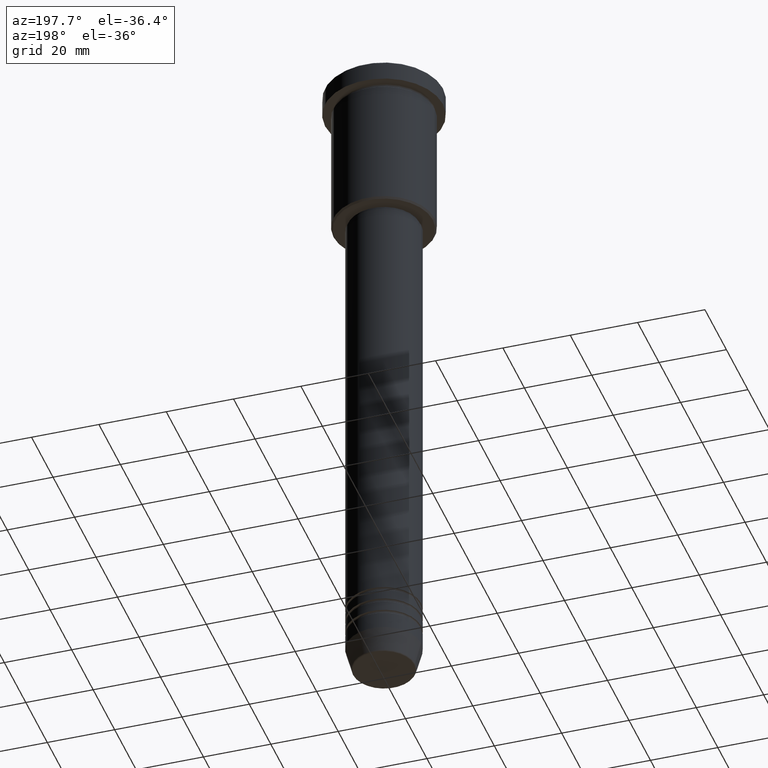
[diagram: clean part render]
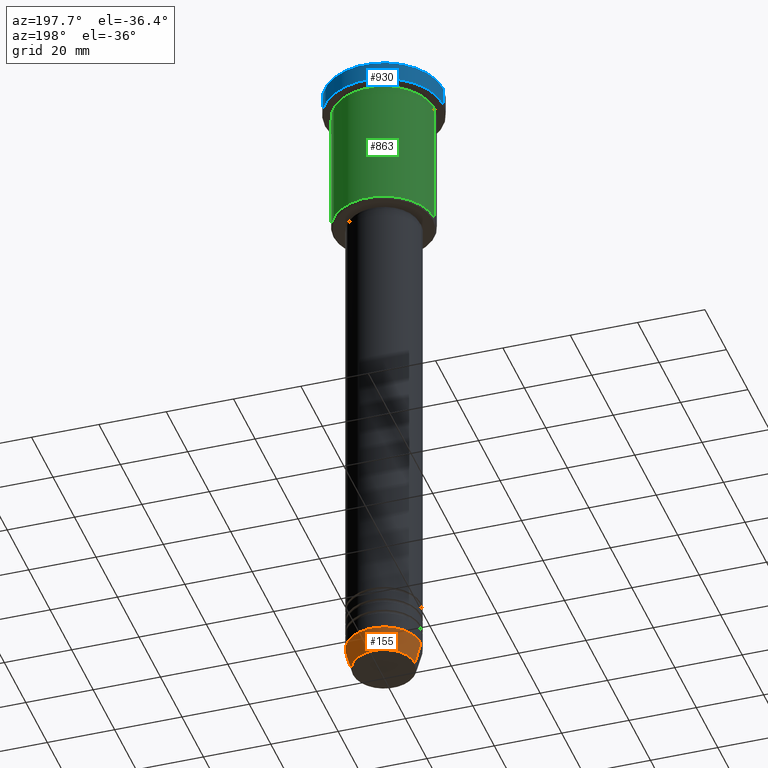
[diagram: same view with three faces highlighted in distinct colors, each labeled with its STEP entity id]
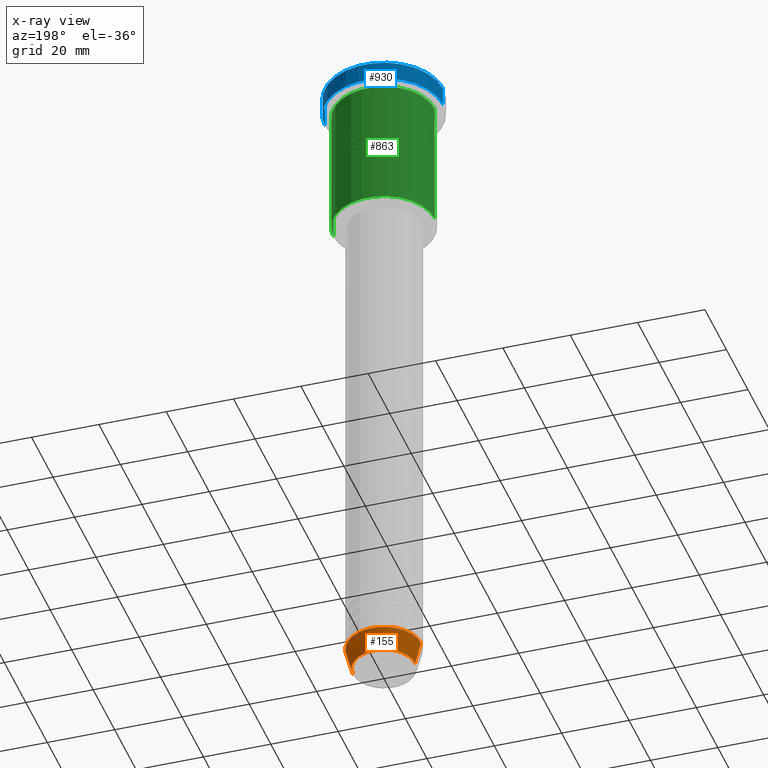
[diagram: x-ray of the same camera — body ghosted, the three highlighted faces saturated]
A machine part, auxiliary view with three faces highlighted in distinct colors.
The next image is the same camera in x-ray (body ghosted, the three faces saturated) — at least one of them is partly hidden behind the body in this view.
Their STEP definitions:

[orange] entity #155 — the highlighted conical surface has half-angle 15 deg.
#14 = ORIENTED_EDGE ( 'NONE', *, *, #70, .F. ) ;
#18 = DIRECTION ( 'NONE',  ( 0.2588190451025213501, 0.000000000000000000, 0.9659258262890680902 ) ) ;
#34 = AXIS2_PLACEMENT_3D ( 'NONE', #71, #628, #81 ) ;
#70 = EDGE_CURVE ( 'NONE', #952, #1005, #313, .T. ) ;
#71 = CARTESIAN_POINT ( 'NONE',  ( 0.000000000000000000, 0.000000000000000000, -194.0000000000000000 ) ) ;
#81 = DIRECTION ( 'NONE',  ( 1.000000000000000000, 0.000000000000000000, 0.000000000000000000 ) ) ;
#120 = CARTESIAN_POINT ( 'NONE',  ( -9.223655072137189492, 1.238341722557647202E-15, -200.6294095225512706 ) ) ;
#151 = DIRECTION ( 'NONE',  ( 1.000000000000000000, 0.000000000000000000, 0.000000000000000000 ) ) ;
#155 = ADVANCED_FACE ( 'NONE', ( #921 ), #1100, .T. ) ;
#160 = AXIS2_PLACEMENT_3D ( 'NONE', #976, #694, #151 ) ;
#167 = DIRECTION ( 'NONE',  ( -0.2588190451025213501, 3.169619151431772337E-17, 0.9659258262890680902 ) ) ;
#172 = LINE ( 'NONE', #1007, #1152 ) ;
#196 = CARTESIAN_POINT ( 'NONE',  ( -11.00000000000000000, 1.347111479062088405E-15, -194.0000000000000000 ) ) ;
#261 = ORIENTED_EDGE ( 'NONE', *, *, #949, .T. ) ;
#264 = EDGE_CURVE ( 'NONE', #269, #952, #385, .T. ) ;
#267 = CARTESIAN_POINT ( 'NONE',  ( 0.000000000000000000, 0.000000000000000000, -194.0000000000000000 ) ) ;
#269 = VERTEX_POINT ( 'NONE', #376 ) ;
#313 = CIRCLE ( 'NONE', #34, 11.00000000000000000 ) ;
#337 = VECTOR ( 'NONE', #18, 1000.000000000000000 ) ;
#359 = CARTESIAN_POINT ( 'NONE',  ( 11.00000000000000000, 0.000000000000000000, -194.0000000000000000 ) ) ;
#376 = CARTESIAN_POINT ( 'NONE',  ( 9.223655072137189492, 0.000000000000000000, -200.6294095225512706 ) ) ;
#385 = LINE ( 'NONE', #641, #337 ) ;
#542 = VERTEX_POINT ( 'NONE', #120 ) ;
#592 = EDGE_CURVE ( 'NONE', #269, #542, #682, .T. ) ;
#628 = DIRECTION ( 'NONE',  ( -0.000000000000000000, -0.000000000000000000, 1.000000000000000000 ) ) ;
#641 = CARTESIAN_POINT ( 'NONE',  ( 11.00000000000000000, 0.000000000000000000, -194.0000000000000000 ) ) ;
#682 = CIRCLE ( 'NONE', #160, 9.223655072137189492 ) ;
#694 = DIRECTION ( 'NONE',  ( -0.000000000000000000, -0.000000000000000000, 1.000000000000000000 ) ) ;
#719 = AXIS2_PLACEMENT_3D ( 'NONE', #267, #909, #1177 ) ;
#909 = DIRECTION ( 'NONE',  ( -0.000000000000000000, -0.000000000000000000, 1.000000000000000000 ) ) ;
#921 = FACE_OUTER_BOUND ( 'NONE', #953, .T. ) ;
#949 = EDGE_CURVE ( 'NONE', #542, #1005, #172, .T. ) ;
#952 = VERTEX_POINT ( 'NONE', #359 ) ;
#953 = EDGE_LOOP ( 'NONE', ( #1048, #261, #14, #1110 ) ) ;
#976 = CARTESIAN_POINT ( 'NONE',  ( 0.000000000000000000, 0.000000000000000000, -200.6294095225512706 ) ) ;
#1005 = VERTEX_POINT ( 'NONE', #196 ) ;
#1007 = CARTESIAN_POINT ( 'NONE',  ( -11.00000000000000000, 1.347111479062088405E-15, -194.0000000000000000 ) ) ;
#1048 = ORIENTED_EDGE ( 'NONE', *, *, #592, .T. ) ;
#1100 = CONICAL_SURFACE ( 'NONE', #719, 11.00000000000000000, 0.2617993877991500740 ) ;
#1110 = ORIENTED_EDGE ( 'NONE', *, *, #264, .F. ) ;
#1152 = VECTOR ( 'NONE', #167, 1000.000000000000000 ) ;
#1177 = DIRECTION ( 'NONE',  ( 1.000000000000000000, 0.000000000000000000, 0.000000000000000000 ) ) ;

[blue] entity #930 — the highlighted cylindrical surface (partial cylindrical patch) has radius 17.5 mm, axis along (-0, -0, 1).
#3 = VECTOR ( 'NONE', #178, 1000.000000000000000 ) ;
#37 = CARTESIAN_POINT ( 'NONE',  ( 17.50000000000000000, 0.000000000000000000, 0.000000000000000000 ) ) ;
#64 = DIRECTION ( 'NONE',  ( 0.000000000000000000, 0.000000000000000000, -1.000000000000000000 ) ) ;
#90 = CARTESIAN_POINT ( 'NONE',  ( -17.50000000000000000, 2.143131898507868248E-15, 0.000000000000000000 ) ) ;
#142 = AXIS2_PLACEMENT_3D ( 'NONE', #724, #849, #736 ) ;
#162 = CIRCLE ( 'NONE', #1091, 17.50000000000000000 ) ;
#178 = DIRECTION ( 'NONE',  ( -0.000000000000000000, -0.000000000000000000, 1.000000000000000000 ) ) ;
#227 = CARTESIAN_POINT ( 'NONE',  ( -17.50000000000000000, 2.143131898507868248E-15, -0.5000000000000003331 ) ) ;
#232 = ORIENTED_EDGE ( 'NONE', *, *, #920, .T. ) ;
#277 = FACE_OUTER_BOUND ( 'NONE', #1060, .T. ) ;
#284 = VERTEX_POINT ( 'NONE', #758 ) ;
#321 = CARTESIAN_POINT ( 'NONE',  ( 17.50000000000000000, 0.000000000000000000, -0.5000000000000003331 ) ) ;
#329 = DIRECTION ( 'NONE',  ( -0.000000000000000000, -0.000000000000000000, 1.000000000000000000 ) ) ;
#333 = VERTEX_POINT ( 'NONE', #227 ) ;
#345 = VERTEX_POINT ( 'NONE', #321 ) ;
#379 = CARTESIAN_POINT ( 'NONE',  ( 17.50000000000000000, 0.000000000000000000, -5.999999999999995559 ) ) ;
#429 = DIRECTION ( 'NONE',  ( 1.000000000000000000, 0.000000000000000000, 0.000000000000000000 ) ) ;
#489 = LINE ( 'NONE', #37, #1036 ) ;
#610 = CARTESIAN_POINT ( 'NONE',  ( 0.000000000000000000, 0.000000000000000000, -0.5000000000000003331 ) ) ;
#638 = AXIS2_PLACEMENT_3D ( 'NONE', #1061, #329, #1147 ) ;
#645 = LINE ( 'NONE', #90, #3 ) ;
#653 = CYLINDRICAL_SURFACE ( 'NONE', #142, 17.50000000000000000 ) ;
#724 = CARTESIAN_POINT ( 'NONE',  ( 0.000000000000000000, 0.000000000000000000, 0.000000000000000000 ) ) ;
#730 = EDGE_CURVE ( 'NONE', #936, #284, #965, .T. ) ;
#736 = DIRECTION ( 'NONE',  ( 1.000000000000000000, 0.000000000000000000, 0.000000000000000000 ) ) ;
#758 = CARTESIAN_POINT ( 'NONE',  ( -17.50000000000000000, 2.143131898507868248E-15, -5.999999999999995559 ) ) ;
#779 = ORIENTED_EDGE ( 'NONE', *, *, #1009, .F. ) ;
#849 = DIRECTION ( 'NONE',  ( -0.000000000000000000, -0.000000000000000000, 1.000000000000000000 ) ) ;
#920 = EDGE_CURVE ( 'NONE', #284, #333, #645, .T. ) ;
#930 = ADVANCED_FACE ( 'NONE', ( #277 ), #653, .T. ) ;
#936 = VERTEX_POINT ( 'NONE', #379 ) ;
#943 = ORIENTED_EDGE ( 'NONE', *, *, #1155, .T. ) ;
#965 = CIRCLE ( 'NONE', #638, 17.50000000000000000 ) ;
#994 = ORIENTED_EDGE ( 'NONE', *, *, #730, .T. ) ;
#1009 = EDGE_CURVE ( 'NONE', #936, #345, #489, .T. ) ;
#1036 = VECTOR ( 'NONE', #1045, 1000.000000000000000 ) ;
#1045 = DIRECTION ( 'NONE',  ( -0.000000000000000000, -0.000000000000000000, 1.000000000000000000 ) ) ;
#1060 = EDGE_LOOP ( 'NONE', ( #994, #232, #943, #779 ) ) ;
#1061 = CARTESIAN_POINT ( 'NONE',  ( 0.000000000000000000, 0.000000000000000000, -5.999999999999995559 ) ) ;
#1091 = AXIS2_PLACEMENT_3D ( 'NONE', #610, #64, #429 ) ;
#1147 = DIRECTION ( 'NONE',  ( 1.000000000000000000, 0.000000000000000000, 0.000000000000000000 ) ) ;
#1155 = EDGE_CURVE ( 'NONE', #333, #345, #162, .T. ) ;

[green] entity #863 — the highlighted cylindrical surface (partial cylindrical patch) has radius 15 mm, axis along (-0, -0, 1).
#15 = CARTESIAN_POINT ( 'NONE',  ( 0.000000000000000000, 0.000000000000000000, 0.000000000000000000 ) ) ;
#25 = ORIENTED_EDGE ( 'NONE', *, *, #414, .T. ) ;
#52 = CARTESIAN_POINT ( 'NONE',  ( -15.00000000000000000, 1.836970198721029589E-15, -45.50000000000000000 ) ) ;
#80 = EDGE_CURVE ( 'NONE', #889, #1178, #926, .T. ) ;
#87 = ORIENTED_EDGE ( 'NONE', *, *, #320, .F. ) ;
#106 = CARTESIAN_POINT ( 'NONE',  ( 0.000000000000000000, 0.000000000000000000, -6.999999999999995559 ) ) ;
#116 = CIRCLE ( 'NONE', #270, 15.00000000000000000 ) ;
#144 = LINE ( 'NONE', #508, #271 ) ;
#198 = DIRECTION ( 'NONE',  ( 1.000000000000000000, 0.000000000000000000, 0.000000000000000000 ) ) ;
#229 = ORIENTED_EDGE ( 'NONE', *, *, #80, .F. ) ;
#270 = AXIS2_PLACEMENT_3D ( 'NONE', #106, #1038, #198 ) ;
#271 = VECTOR ( 'NONE', #968, 1000.000000000000000 ) ;
#320 = EDGE_CURVE ( 'NONE', #1178, #1136, #116, .T. ) ;
#370 = DIRECTION ( 'NONE',  ( 1.000000000000000000, 0.000000000000000000, 0.000000000000000000 ) ) ;
#414 = EDGE_CURVE ( 'NONE', #709, #1136, #144, .T. ) ;
#417 = AXIS2_PLACEMENT_3D ( 'NONE', #15, #1019, #370 ) ;
#483 = CIRCLE ( 'NONE', #1170, 15.00000000000000000 ) ;
#508 = CARTESIAN_POINT ( 'NONE',  ( -15.00000000000000000, 1.836970198721029589E-15, 0.000000000000000000 ) ) ;
#514 = DIRECTION ( 'NONE',  ( -0.000000000000000000, -0.000000000000000000, 1.000000000000000000 ) ) ;
#539 = CARTESIAN_POINT ( 'NONE',  ( 15.00000000000000000, 0.000000000000000000, 0.000000000000000000 ) ) ;
#566 = CYLINDRICAL_SURFACE ( 'NONE', #417, 15.00000000000000000 ) ;
#576 = EDGE_CURVE ( 'NONE', #889, #709, #483, .T. ) ;
#608 = CARTESIAN_POINT ( 'NONE',  ( 0.000000000000000000, 0.000000000000000000, -45.50000000000000000 ) ) ;
#689 = CARTESIAN_POINT ( 'NONE',  ( 15.00000000000000000, 0.000000000000000000, -6.999999999999995559 ) ) ;
#709 = VERTEX_POINT ( 'NONE', #52 ) ;
#717 = CARTESIAN_POINT ( 'NONE',  ( -15.00000000000000000, 1.836970198721029589E-15, -6.999999999999995559 ) ) ;
#727 = EDGE_LOOP ( 'NONE', ( #1039, #25, #87, #229 ) ) ;
#746 = CARTESIAN_POINT ( 'NONE',  ( 15.00000000000000000, 0.000000000000000000, -45.50000000000000000 ) ) ;
#784 = VECTOR ( 'NONE', #1090, 1000.000000000000000 ) ;
#842 = FACE_OUTER_BOUND ( 'NONE', #727, .T. ) ;
#863 = ADVANCED_FACE ( 'NONE', ( #842 ), #566, .T. ) ;
#889 = VERTEX_POINT ( 'NONE', #746 ) ;
#926 = LINE ( 'NONE', #539, #784 ) ;
#968 = DIRECTION ( 'NONE',  ( -0.000000000000000000, -0.000000000000000000, 1.000000000000000000 ) ) ;
#1019 = DIRECTION ( 'NONE',  ( -0.000000000000000000, -0.000000000000000000, 1.000000000000000000 ) ) ;
#1038 = DIRECTION ( 'NONE',  ( -0.000000000000000000, -0.000000000000000000, 1.000000000000000000 ) ) ;
#1039 = ORIENTED_EDGE ( 'NONE', *, *, #576, .T. ) ;
#1090 = DIRECTION ( 'NONE',  ( -0.000000000000000000, -0.000000000000000000, 1.000000000000000000 ) ) ;
#1136 = VERTEX_POINT ( 'NONE', #717 ) ;
#1157 = DIRECTION ( 'NONE',  ( -1.000000000000000000, 0.000000000000000000, 0.000000000000000000 ) ) ;
#1170 = AXIS2_PLACEMENT_3D ( 'NONE', #608, #514, #1157 ) ;
#1178 = VERTEX_POINT ( 'NONE', #689 ) ;